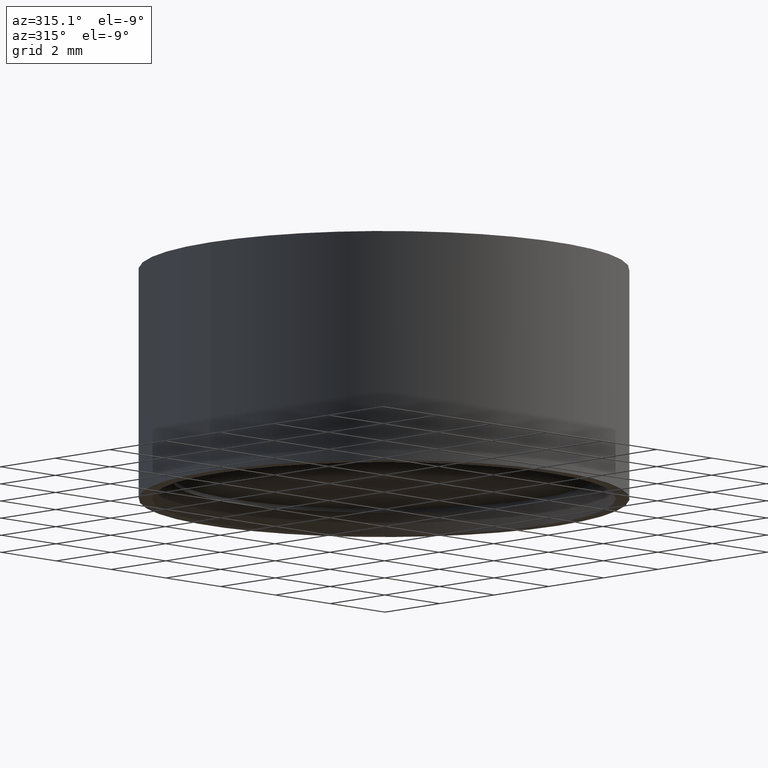
[diagram: clean part render]
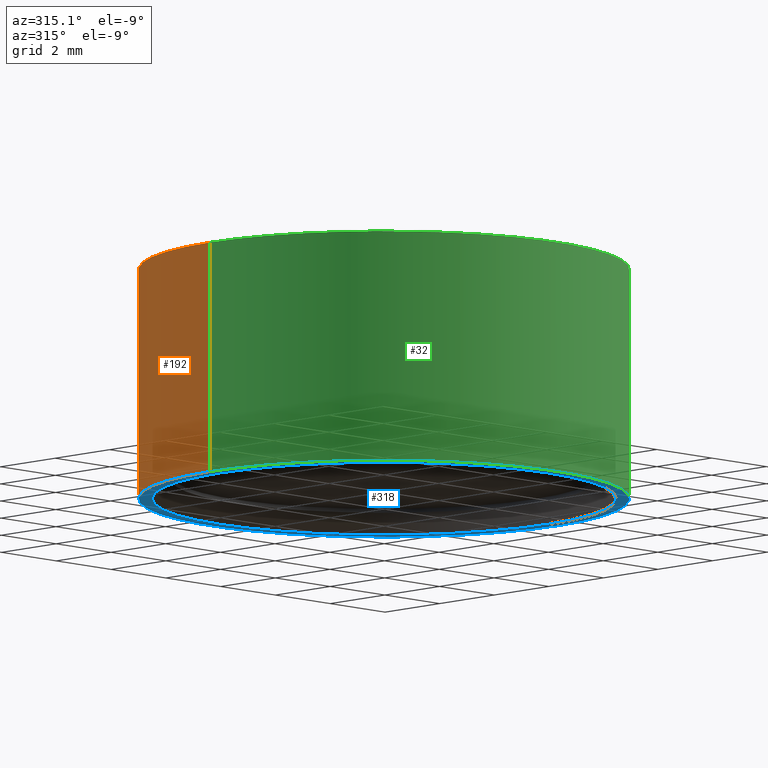
[diagram: same view with three faces highlighted in distinct colors, each labeled with its STEP entity id]
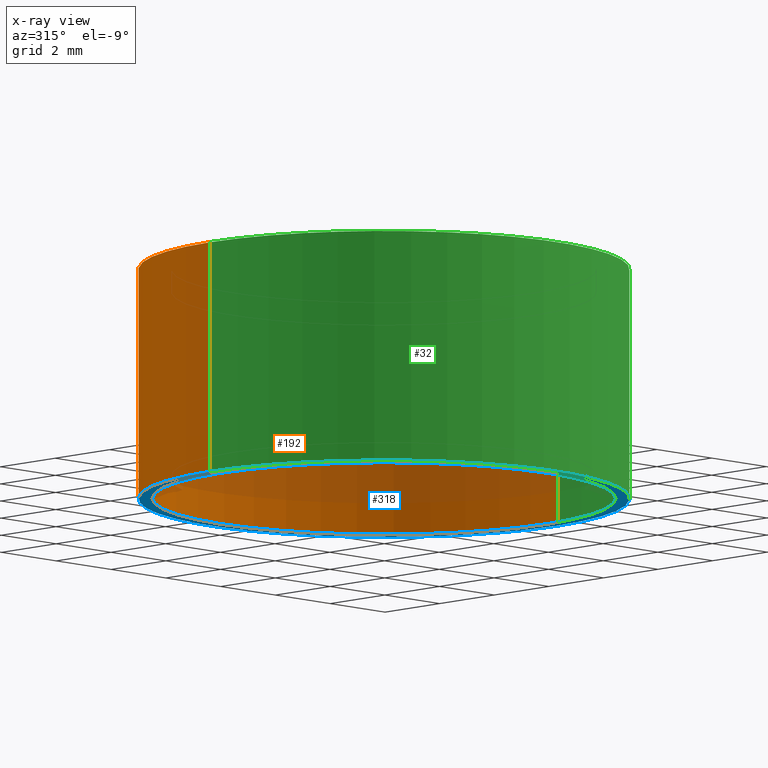
[diagram: x-ray of the same camera — body ghosted, the three highlighted faces saturated]
A machine part, auxiliary view with three faces highlighted in distinct colors.
The next image is the same camera in x-ray (body ghosted, the three faces saturated) — at least one of them is partly hidden behind the body in this view.
Their STEP definitions:

[orange] entity #192 — the highlighted cylindrical surface (partial cylindrical patch) has radius 6.35 mm, axis along (-0, -0, -1).
#30 = EDGE_LOOP ( 'NONE', ( #106, #158, #149, #121 ) ) ;
#39 = AXIS2_PLACEMENT_3D ( 'NONE', #91, #92, #243 ) ;
#40 = CARTESIAN_POINT ( 'NONE',  ( -6.349999999999999645, 0.000000000000000000, 6.000000000000000000 ) ) ;
#47 = CARTESIAN_POINT ( 'NONE',  ( 6.349999999999999645, 7.776507174585692163E-16, 6.000000000000000000 ) ) ;
#49 = EDGE_CURVE ( 'NONE', #113, #272, #52, .T. ) ;
#52 = LINE ( 'NONE', #321, #421 ) ;
#65 = EDGE_CURVE ( 'NONE', #113, #311, #457, .T. ) ;
#85 = DIRECTION ( 'NONE',  ( -0.000000000000000000, -0.000000000000000000, -1.000000000000000000 ) ) ;
#91 = CARTESIAN_POINT ( 'NONE',  ( 0.000000000000000000, 0.000000000000000000, 6.000000000000000000 ) ) ;
#92 = DIRECTION ( 'NONE',  ( 0.000000000000000000, 0.000000000000000000, 1.000000000000000000 ) ) ;
#97 = DIRECTION ( 'NONE',  ( -1.000000000000000000, 0.000000000000000000, 0.000000000000000000 ) ) ;
#106 = ORIENTED_EDGE ( 'NONE', *, *, #65, .F. ) ;
#113 = VERTEX_POINT ( 'NONE', #47 ) ;
#121 = ORIENTED_EDGE ( 'NONE', *, *, #342, .F. ) ;
#125 = AXIS2_PLACEMENT_3D ( 'NONE', #174, #445, #97 ) ;
#127 = FACE_OUTER_BOUND ( 'NONE', #30, .T. ) ;
#149 = ORIENTED_EDGE ( 'NONE', *, *, #371, .T. ) ;
#150 = DIRECTION ( 'NONE',  ( 1.000000000000000000, 0.000000000000000000, 0.000000000000000000 ) ) ;
#158 = ORIENTED_EDGE ( 'NONE', *, *, #49, .T. ) ;
#174 = CARTESIAN_POINT ( 'NONE',  ( 0.000000000000000000, 0.000000000000000000, 6.000000000000000000 ) ) ;
#192 = ADVANCED_FACE ( 'NONE', ( #127 ), #204, .T. ) ;
#204 = CYLINDRICAL_SURFACE ( 'NONE', #125, 6.349999999999999645 ) ;
#225 = AXIS2_PLACEMENT_3D ( 'NONE', #242, #343, #150 ) ;
#242 = CARTESIAN_POINT ( 'NONE',  ( 0.000000000000000000, 0.000000000000000000, 0.000000000000000000 ) ) ;
#243 = DIRECTION ( 'NONE',  ( 1.000000000000000000, 0.000000000000000000, 0.000000000000000000 ) ) ;
#272 = VERTEX_POINT ( 'NONE', #286 ) ;
#286 = CARTESIAN_POINT ( 'NONE',  ( 6.349999999999999645, 7.776507174585692163E-16, 0.000000000000000000 ) ) ;
#311 = VERTEX_POINT ( 'NONE', #487 ) ;
#314 = VERTEX_POINT ( 'NONE', #412 ) ;
#317 = VECTOR ( 'NONE', #469, 1000.000000000000000 ) ;
#321 = CARTESIAN_POINT ( 'NONE',  ( 6.349999999999999645, 7.776507174585692163E-16, 6.000000000000000000 ) ) ;
#342 = EDGE_CURVE ( 'NONE', #311, #314, #427, .T. ) ;
#343 = DIRECTION ( 'NONE',  ( 0.000000000000000000, 0.000000000000000000, 1.000000000000000000 ) ) ;
#371 = EDGE_CURVE ( 'NONE', #272, #314, #451, .T. ) ;
#412 = CARTESIAN_POINT ( 'NONE',  ( -6.349999999999999645, 0.000000000000000000, 0.000000000000000000 ) ) ;
#421 = VECTOR ( 'NONE', #85, 1000.000000000000000 ) ;
#427 = LINE ( 'NONE', #40, #317 ) ;
#445 = DIRECTION ( 'NONE',  ( -0.000000000000000000, -0.000000000000000000, -1.000000000000000000 ) ) ;
#451 = CIRCLE ( 'NONE', #225, 6.349999999999999645 ) ;
#457 = CIRCLE ( 'NONE', #39, 6.349999999999999645 ) ;
#469 = DIRECTION ( 'NONE',  ( -0.000000000000000000, -0.000000000000000000, -1.000000000000000000 ) ) ;
#487 = CARTESIAN_POINT ( 'NONE',  ( -6.349999999999999645, 0.000000000000000000, 6.000000000000000000 ) ) ;

[blue] entity #318 — the highlighted planar face has unit normal (0, 0, 1).
#17 = CARTESIAN_POINT ( 'NONE',  ( 0.000000000000000000, 0.000000000000000000, 0.000000000000000000 ) ) ;
#24 = DIRECTION ( 'NONE',  ( 1.000000000000000000, 0.000000000000000000, 0.000000000000000000 ) ) ;
#60 = AXIS2_PLACEMENT_3D ( 'NONE', #96, #277, #205 ) ;
#61 = DIRECTION ( 'NONE',  ( 1.000000000000000000, 0.000000000000000000, 0.000000000000000000 ) ) ;
#62 = AXIS2_PLACEMENT_3D ( 'NONE', #236, #271, #160 ) ;
#71 = ORIENTED_EDGE ( 'NONE', *, *, #301, .T. ) ;
#96 = CARTESIAN_POINT ( 'NONE',  ( 0.000000000000000000, 0.000000000000000000, 0.000000000000000000 ) ) ;
#105 = CARTESIAN_POINT ( 'NONE',  ( -5.999999999999998224, 0.000000000000000000, 0.000000000000000000 ) ) ;
#119 = ORIENTED_EDGE ( 'NONE', *, *, #138, .T. ) ;
#133 = CIRCLE ( 'NONE', #217, 6.349999999999999645 ) ;
#134 = AXIS2_PLACEMENT_3D ( 'NONE', #449, #259, #24 ) ;
#138 = EDGE_CURVE ( 'NONE', #298, #222, #216, .T. ) ;
#150 = DIRECTION ( 'NONE',  ( 1.000000000000000000, 0.000000000000000000, 0.000000000000000000 ) ) ;
#154 = PLANE ( 'NONE',  #62 ) ;
#160 = DIRECTION ( 'NONE',  ( 1.000000000000000000, 0.000000000000000000, -0.000000000000000000 ) ) ;
#205 = DIRECTION ( 'NONE',  ( 1.000000000000000000, 0.000000000000000000, 0.000000000000000000 ) ) ;
#216 = CIRCLE ( 'NONE', #60, 5.999999999999998224 ) ;
#217 = AXIS2_PLACEMENT_3D ( 'NONE', #17, #407, #61 ) ;
#222 = VERTEX_POINT ( 'NONE', #328 ) ;
#225 = AXIS2_PLACEMENT_3D ( 'NONE', #242, #343, #150 ) ;
#236 = CARTESIAN_POINT ( 'NONE',  ( 0.000000000000000000, 0.000000000000000000, 0.000000000000000000 ) ) ;
#242 = CARTESIAN_POINT ( 'NONE',  ( 0.000000000000000000, 0.000000000000000000, 0.000000000000000000 ) ) ;
#259 = DIRECTION ( 'NONE',  ( 0.000000000000000000, 0.000000000000000000, 1.000000000000000000 ) ) ;
#271 = DIRECTION ( 'NONE',  ( 0.000000000000000000, 0.000000000000000000, 1.000000000000000000 ) ) ;
#272 = VERTEX_POINT ( 'NONE', #286 ) ;
#277 = DIRECTION ( 'NONE',  ( 0.000000000000000000, 0.000000000000000000, 1.000000000000000000 ) ) ;
#283 = EDGE_CURVE ( 'NONE', #314, #272, #133, .T. ) ;
#286 = CARTESIAN_POINT ( 'NONE',  ( 6.349999999999999645, 7.776507174585692163E-16, 0.000000000000000000 ) ) ;
#298 = VERTEX_POINT ( 'NONE', #105 ) ;
#301 = EDGE_CURVE ( 'NONE', #222, #298, #351, .T. ) ;
#308 = ORIENTED_EDGE ( 'NONE', *, *, #371, .F. ) ;
#314 = VERTEX_POINT ( 'NONE', #412 ) ;
#318 = ADVANCED_FACE ( 'NONE', ( #369, #484 ), #154, .F. ) ;
#328 = CARTESIAN_POINT ( 'NONE',  ( 5.999999999999998224, 7.347880794884117764E-16, 0.000000000000000000 ) ) ;
#343 = DIRECTION ( 'NONE',  ( 0.000000000000000000, 0.000000000000000000, 1.000000000000000000 ) ) ;
#351 = CIRCLE ( 'NONE', #134, 5.999999999999998224 ) ;
#369 = FACE_BOUND ( 'NONE', #419, .T. ) ;
#371 = EDGE_CURVE ( 'NONE', #272, #314, #451, .T. ) ;
#375 = EDGE_LOOP ( 'NONE', ( #463, #308 ) ) ;
#407 = DIRECTION ( 'NONE',  ( 0.000000000000000000, 0.000000000000000000, 1.000000000000000000 ) ) ;
#412 = CARTESIAN_POINT ( 'NONE',  ( -6.349999999999999645, 0.000000000000000000, 0.000000000000000000 ) ) ;
#419 = EDGE_LOOP ( 'NONE', ( #119, #71 ) ) ;
#449 = CARTESIAN_POINT ( 'NONE',  ( 0.000000000000000000, 0.000000000000000000, 0.000000000000000000 ) ) ;
#451 = CIRCLE ( 'NONE', #225, 6.349999999999999645 ) ;
#463 = ORIENTED_EDGE ( 'NONE', *, *, #283, .F. ) ;
#484 = FACE_OUTER_BOUND ( 'NONE', #375, .T. ) ;

[green] entity #32 — the highlighted cylindrical surface (partial cylindrical patch) has radius 6.35 mm, axis along (-0, -0, -1).
#15 = CARTESIAN_POINT ( 'NONE',  ( 0.000000000000000000, 0.000000000000000000, 6.000000000000000000 ) ) ;
#17 = CARTESIAN_POINT ( 'NONE',  ( 0.000000000000000000, 0.000000000000000000, 0.000000000000000000 ) ) ;
#32 = ADVANCED_FACE ( 'NONE', ( #300 ), #455, .T. ) ;
#40 = CARTESIAN_POINT ( 'NONE',  ( -6.349999999999999645, 0.000000000000000000, 6.000000000000000000 ) ) ;
#47 = CARTESIAN_POINT ( 'NONE',  ( 6.349999999999999645, 7.776507174585692163E-16, 6.000000000000000000 ) ) ;
#49 = EDGE_CURVE ( 'NONE', #113, #272, #52, .T. ) ;
#52 = LINE ( 'NONE', #321, #421 ) ;
#61 = DIRECTION ( 'NONE',  ( 1.000000000000000000, 0.000000000000000000, 0.000000000000000000 ) ) ;
#78 = AXIS2_PLACEMENT_3D ( 'NONE', #15, #161, #401 ) ;
#80 = ORIENTED_EDGE ( 'NONE', *, *, #283, .T. ) ;
#85 = DIRECTION ( 'NONE',  ( -0.000000000000000000, -0.000000000000000000, -1.000000000000000000 ) ) ;
#113 = VERTEX_POINT ( 'NONE', #47 ) ;
#133 = CIRCLE ( 'NONE', #217, 6.349999999999999645 ) ;
#161 = DIRECTION ( 'NONE',  ( -0.000000000000000000, -0.000000000000000000, -1.000000000000000000 ) ) ;
#163 = CARTESIAN_POINT ( 'NONE',  ( 0.000000000000000000, 0.000000000000000000, 6.000000000000000000 ) ) ;
#215 = EDGE_CURVE ( 'NONE', #311, #113, #261, .T. ) ;
#217 = AXIS2_PLACEMENT_3D ( 'NONE', #17, #407, #61 ) ;
#261 = CIRCLE ( 'NONE', #305, 6.349999999999999645 ) ;
#264 = ORIENTED_EDGE ( 'NONE', *, *, #49, .F. ) ;
#272 = VERTEX_POINT ( 'NONE', #286 ) ;
#283 = EDGE_CURVE ( 'NONE', #314, #272, #133, .T. ) ;
#286 = CARTESIAN_POINT ( 'NONE',  ( 6.349999999999999645, 7.776507174585692163E-16, 0.000000000000000000 ) ) ;
#293 = DIRECTION ( 'NONE',  ( 1.000000000000000000, 0.000000000000000000, 0.000000000000000000 ) ) ;
#300 = FACE_OUTER_BOUND ( 'NONE', #376, .T. ) ;
#305 = AXIS2_PLACEMENT_3D ( 'NONE', #163, #320, #293 ) ;
#311 = VERTEX_POINT ( 'NONE', #487 ) ;
#314 = VERTEX_POINT ( 'NONE', #412 ) ;
#317 = VECTOR ( 'NONE', #469, 1000.000000000000000 ) ;
#320 = DIRECTION ( 'NONE',  ( 0.000000000000000000, 0.000000000000000000, 1.000000000000000000 ) ) ;
#321 = CARTESIAN_POINT ( 'NONE',  ( 6.349999999999999645, 7.776507174585692163E-16, 6.000000000000000000 ) ) ;
#338 = ORIENTED_EDGE ( 'NONE', *, *, #215, .F. ) ;
#342 = EDGE_CURVE ( 'NONE', #311, #314, #427, .T. ) ;
#376 = EDGE_LOOP ( 'NONE', ( #264, #338, #384, #80 ) ) ;
#384 = ORIENTED_EDGE ( 'NONE', *, *, #342, .T. ) ;
#401 = DIRECTION ( 'NONE',  ( -1.000000000000000000, 0.000000000000000000, 0.000000000000000000 ) ) ;
#407 = DIRECTION ( 'NONE',  ( 0.000000000000000000, 0.000000000000000000, 1.000000000000000000 ) ) ;
#412 = CARTESIAN_POINT ( 'NONE',  ( -6.349999999999999645, 0.000000000000000000, 0.000000000000000000 ) ) ;
#421 = VECTOR ( 'NONE', #85, 1000.000000000000000 ) ;
#427 = LINE ( 'NONE', #40, #317 ) ;
#455 = CYLINDRICAL_SURFACE ( 'NONE', #78, 6.349999999999999645 ) ;
#469 = DIRECTION ( 'NONE',  ( -0.000000000000000000, -0.000000000000000000, -1.000000000000000000 ) ) ;
#487 = CARTESIAN_POINT ( 'NONE',  ( -6.349999999999999645, 0.000000000000000000, 6.000000000000000000 ) ) ;